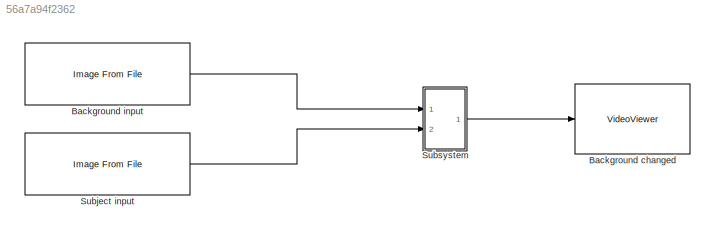
MODEL slx_56a7a94f2362
KIND model
CONFIG AbsTol = auto
CONFIG EnableMultiTasking = off
CONFIG FixedStep = auto
CONFIG MaxStep = auto
CONFIG MinStep = auto
CONFIG RelTol = 1e-3
CONFIG SampleTimeConstraint = Unconstrained
CONFIG SolverName = VariableStepAuto
CONFIG StartTime = 0.0
CONFIG StopTime = 1
WORKSPACE source: mxarray member
WORKSPACE a = 50
WORKSPACE x = 100
BLOCK [VideoViewer] Background changed
  FigPos = [1 862 1536 764]
  Ports = [1]
  ScopeSpecificationString = vipscopes.VideoViewerScopeCfg('CurrentConfiguration', extmgr.ConfigurationSet(extmgr.Configuration('Core','General UI',true),extmgr.Configuration('Core','Source UI',true),extmgr.Configuration('Sources','WiredSimulink',true),extmgr.Configuration('Visuals','Video',true),extmgr.Configuration('Tools','Image Navigation Tools',true,'Magnification',2.56944444444444),extmgr.Configuration('Tools','Image To...<+105ch>
  colormapValue = gray(256)
BLOCK [Reference] Background input  REF=visionsources/Image From File
  Ports = [0, 1]
  SourceBlock = visionsources/Image From File
  SourceProductBaseCode = VP
  SourceType = Image From File
  Tag = vipblks_nd
BLOCK [Reference] Subject input  REF=visionsources/Image From File
  Ports = [0, 1]
  SourceBlock = visionsources/Image From File
  SourceProductBaseCode = VP
  SourceType = Image From File
  Tag = vipblks_nd
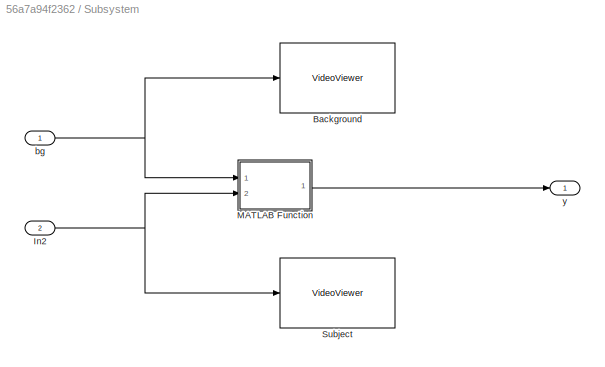
BLOCK [SubSystem] Subsystem
  Ports = [2, 1]
  RequestExecContextInheritance = off
BLOCK [VideoViewer] Subsystem/Background
  FigPos = [1 862 1536 764]
  Ports = [1]
  ScopeSpecificationString = vipscopes.VideoViewerScopeCfg('CurrentConfiguration', extmgr.ConfigurationSet(extmgr.Configuration('Core','General UI',true),extmgr.Configuration('Core','Source UI',true),extmgr.Configuration('Sources','WiredSimulink',true),extmgr.Configuration('Visuals','Video',true),extmgr.Configuration('Tools','Image Navigation Tools',true),extmgr.Configuration('Tools','Image Tool',true),extmgr.Configuration('T...<+72ch>
BLOCK [Inport] Subsystem/In2
  Port = 2
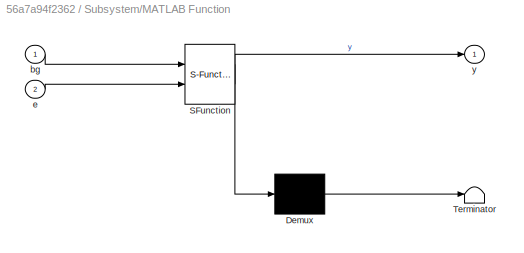
BLOCK [SubSystem] Subsystem/MATLAB Function
  ErrorFcn = Stateflow.Translate.translate
  PermitHierarchicalResolution = ExplicitOnly
  Ports = [2, 1]
  RequestExecContextInheritance = off
  SFBlockType = MATLAB Function
  TreatAsAtomicUnit = on
BLOCK [Demux] Subsystem/MATLAB Function/ Demux 
  Outputs = 1
  Ports = [1, 1]
BLOCK [S-Function] Subsystem/MATLAB Function/ SFunction 
  EnableBusSupport = on
  FunctionName = sf_sfun
  PortCounts = [2 2]
  Ports = [2, 2]
  SFcnIsStateOwnerBlock = off
  SFunctionDeploymentMode = off
  Tag = Stateflow S-Function 2
BLOCK [Terminator] Subsystem/MATLAB Function/ Terminator 
BLOCK [Inport] Subsystem/MATLAB Function/bg
BLOCK [Inport] Subsystem/MATLAB Function/e
  Port = 2
BLOCK [Outport] Subsystem/MATLAB Function/y
BLOCK [VideoViewer] Subsystem/Subject
  FigPos = [1 862 1536 764]
  Ports = [1]
  ScopeSpecificationString = vipscopes.VideoViewerScopeCfg('CurrentConfiguration', extmgr.ConfigurationSet(extmgr.Configuration('Core','General UI',true),extmgr.Configuration('Core','Source UI',true),extmgr.Configuration('Sources','WiredSimulink',true),extmgr.Configuration('Visuals','Video',true),extmgr.Configuration('Tools','Image Navigation Tools',true,'Magnification',0.198200128562246),extmgr.Configuration('Tools','Image T...<+106ch>
  colormapValue = gray(256)
BLOCK [Inport] Subsystem/bg
BLOCK [Outport] Subsystem/y
LINE Background input:1 -> Subsystem:1
LINE Subject input:1 -> Subsystem:2
NET Subsystem/In2:1 -> Subsystem/MATLAB Function:2, Subsystem/Subject:1
LINE Subsystem/MATLAB Function:1 -> Subsystem/y:1
NET Subsystem/bg:1 -> Subsystem/Background:1, Subsystem/MATLAB Function:1
LINE Subsystem:1 -> Background changed:1
note: NET lines group one-source signal fan-out (src -> all destinations, sorted); 1:1 wires keep LINE
CHART Subsystem/MATLAB Function states=1 transitions=1
  STATE_LABEL 'eML_blk_kernel()'
  STATE_LABEL 'SCRIPT:\nfunction y = fcn(bg, e)\n\n\n\nfunction [BW,maskedRGBImage] = createMask(RGB)\n\n% Convert RGB image to chosen color space\nI = rgb2hsv(RGB);\n\n% Define thresholds for channel 1 based on histogram settings\nchannel1Min = 0.196;\nchannel1Max = 0.000;\n\n% Define thresholds for channel 2 based on histogram settings\nchannel2Min = 0.000;\nchannel2Max = 0.236;\n\n% Define thresholds for channel 3 based on his...<+645ch>'
CHART  states=0 transitions=0
